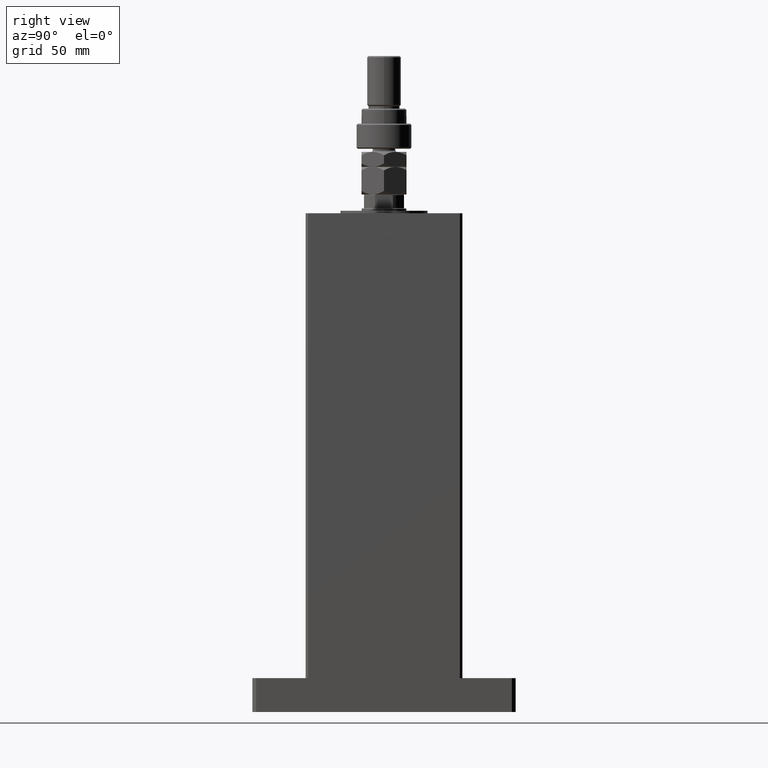
[diagram: clean part render]
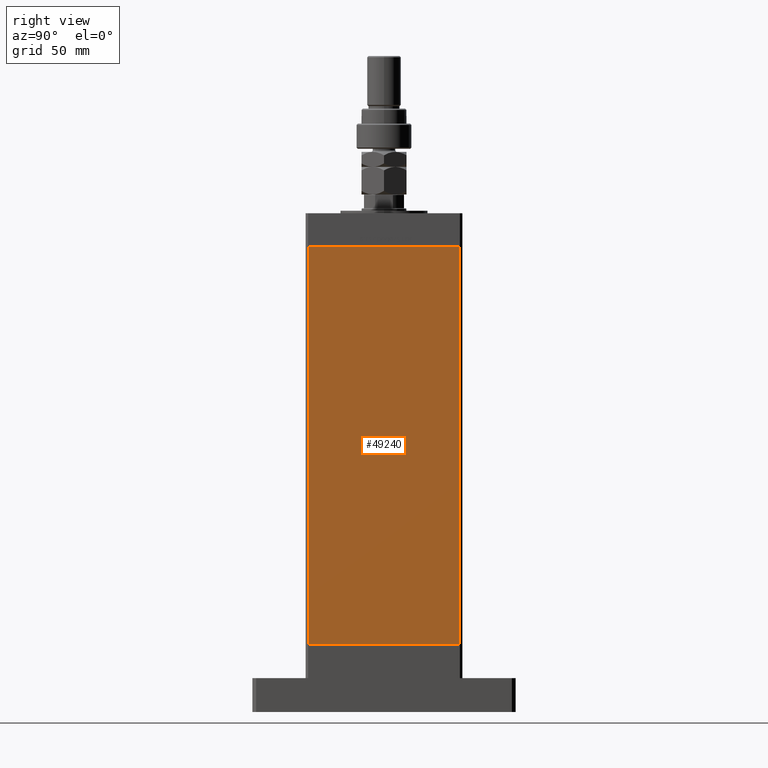
[diagram: same view with one face highlighted and labeled with its STEP entity id]
A machine part, right view. The second image highlights one B-rep face of the part: STEP entity #49240.
In plain terms, the highlighted planar face has unit normal (1, -0, 0).
Its self-contained STEP definition (entity closure, byte-faithful):
#1888 = CARTESIAN_POINT ( 'NONE',  ( 74.99999999999998579, -60.50000000000000000, 317.0000000000000000 ) ) ;
#1947 = EDGE_CURVE ( 'NONE', #20422, #5588, #19052, .T. ) ;
#2423 = ORIENTED_EDGE ( 'NONE', *, *, #56583, .F. ) ;
#5588 = VERTEX_POINT ( 'NONE', #46984 ) ;
#6811 = CARTESIAN_POINT ( 'NONE',  ( 75.00000000000001421, 60.50000000000000000, 317.0000000000000000 ) ) ;
#11654 = VECTOR ( 'NONE', #24268, 1000.000000000000000 ) ;
#11998 = CARTESIAN_POINT ( 'NONE',  ( 74.99999999999998579, -60.50000000000000000, 317.0000000000000000 ) ) ;
#12602 = CARTESIAN_POINT ( 'NONE',  ( 74.99999999999998579, -60.50000000000000000, 0.000000000000000000 ) ) ;
#13075 = PLANE ( 'NONE',  #55739 ) ;
#17260 = LINE ( 'NONE', #25565, #41220 ) ;
#19052 = LINE ( 'NONE', #45106, #25898 ) ;
#20369 = ORIENTED_EDGE ( 'NONE', *, *, #1947, .F. ) ;
#20422 = VERTEX_POINT ( 'NONE', #43142 ) ;
#20712 = DIRECTION ( 'NONE',  ( -2.293849224432141861E-16, -1.000000000000000000, 0.000000000000000000 ) ) ;
#23642 = LINE ( 'NONE', #1888, #50696 ) ;
#24268 = DIRECTION ( 'NONE',  ( -2.293849224432141861E-16, -1.000000000000000000, 0.000000000000000000 ) ) ;
#25565 = CARTESIAN_POINT ( 'NONE',  ( 75.00000000000001421, 60.50000000000000000, 0.000000000000000000 ) ) ;
#25898 = VECTOR ( 'NONE', #46227, 1000.000000000000000 ) ;
#27695 = EDGE_CURVE ( 'NONE', #48094, #52624, #23642, .T. ) ;
#30548 = DIRECTION ( 'NONE',  ( 1.000000000000000000, -2.293849224432141861E-16, 0.000000000000000000 ) ) ;
#35046 = EDGE_CURVE ( 'NONE', #20422, #48094, #46019, .T. ) ;
#35378 = CARTESIAN_POINT ( 'NONE',  ( 75.00000000000001421, 60.50000000000000000, 317.0000000000000000 ) ) ;
#36810 = DIRECTION ( 'NONE',  ( -0.000000000000000000, -0.000000000000000000, -1.000000000000000000 ) ) ;
#38831 = DIRECTION ( 'NONE',  ( 2.293849224432141861E-16, 1.000000000000000000, 0.000000000000000000 ) ) ;
#39948 = FACE_OUTER_BOUND ( 'NONE', #48339, .T. ) ;
#41220 = VECTOR ( 'NONE', #20712, 1000.000000000000000 ) ;
#43142 = CARTESIAN_POINT ( 'NONE',  ( 75.00000000000001421, 60.50000000000000000, 317.0000000000000000 ) ) ;
#45106 = CARTESIAN_POINT ( 'NONE',  ( 75.00000000000001421, 60.50000000000000000, 317.0000000000000000 ) ) ;
#46019 = LINE ( 'NONE', #6811, #11654 ) ;
#46227 = DIRECTION ( 'NONE',  ( -0.000000000000000000, -0.000000000000000000, -1.000000000000000000 ) ) ;
#46984 = CARTESIAN_POINT ( 'NONE',  ( 75.00000000000001421, 60.50000000000000000, 0.000000000000000000 ) ) ;
#48094 = VERTEX_POINT ( 'NONE', #11998 ) ;
#48339 = EDGE_LOOP ( 'NONE', ( #2423, #20369, #48651, #50926 ) ) ;
#48651 = ORIENTED_EDGE ( 'NONE', *, *, #35046, .T. ) ;
#49240 = ADVANCED_FACE ( 'NONE', ( #39948 ), #13075, .T. ) ;
#50696 = VECTOR ( 'NONE', #36810, 1000.000000000000000 ) ;
#50926 = ORIENTED_EDGE ( 'NONE', *, *, #27695, .T. ) ;
#52624 = VERTEX_POINT ( 'NONE', #12602 ) ;
#55739 = AXIS2_PLACEMENT_3D ( 'NONE', #35378, #30548, #38831 ) ;
#56583 = EDGE_CURVE ( 'NONE', #5588, #52624, #17260, .T. ) ;